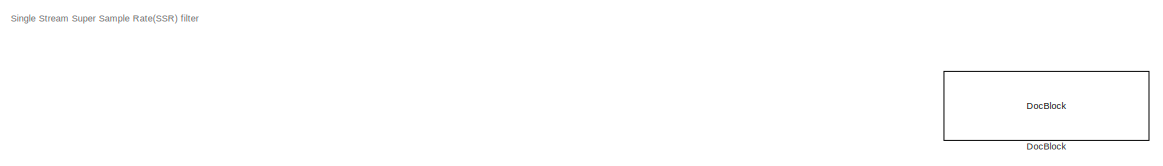
[diagram: root canvas - part 1/4, top center region]
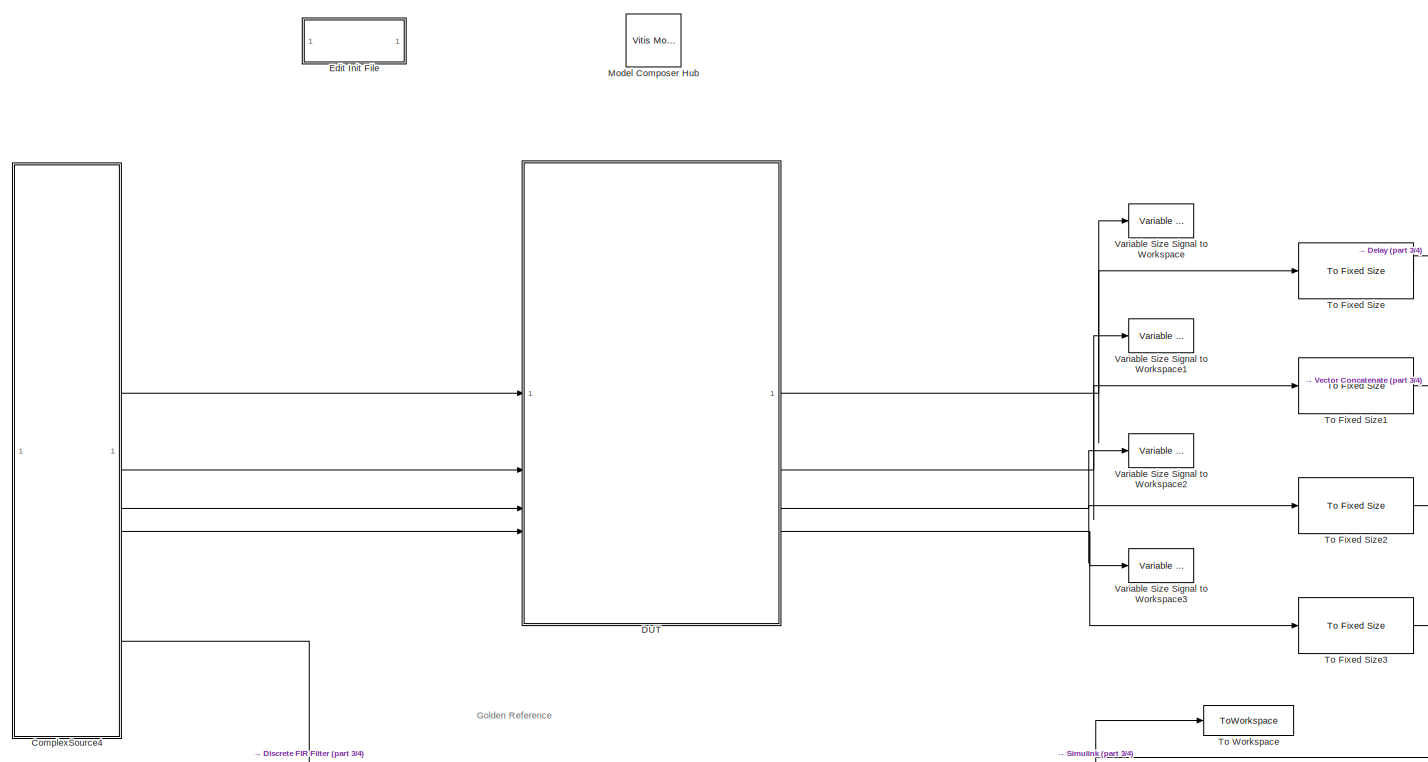
[diagram: root canvas - part 2/4, left side, full height]
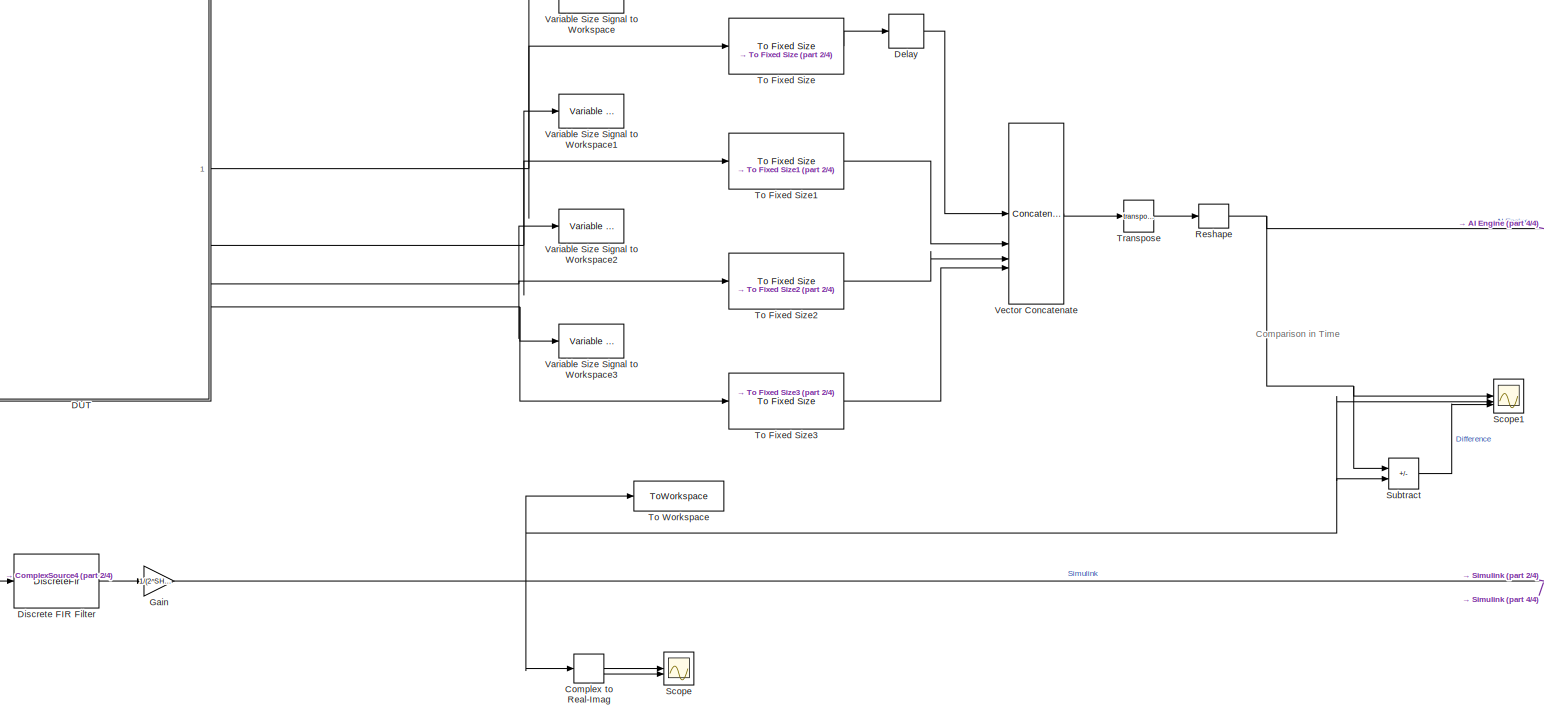
[diagram: root canvas - part 3/4, central region]
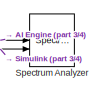
[diagram: root canvas - part 4/4, middle right region]
MODEL slx_2e8bdd02fb03
KIND model
CONFIG AbsTol = auto
CONFIG EnableMultiTasking = off
CONFIG FixedStep = auto
CONFIG InitFcn = xmcCheckSlxPath(bdroot)\nSSR4_init;\n\n
CONFIG MaxStep = auto
CONFIG MinStep = auto
CONFIG PreLoadFcn = xmcCheckSlxPath(bdroot)\nSSR4_init\n
CONFIG RelTol = 1e-3
CONFIG SampleTimeConstraint = Unconstrained
CONFIG SolverName = VariableStepAuto
CONFIG StartTime = 0.0
CONFIG StopTime = 4096
BLOCK [ComplexToRealImag] Complex to Real-Imag
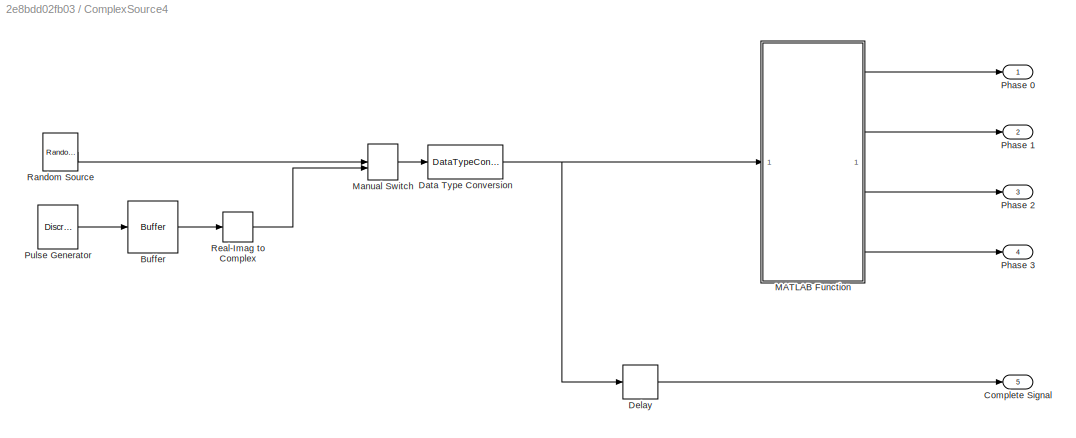
BLOCK [SubSystem] ComplexSource4
BLOCK [Buffer] ComplexSource4/Buffer
  N = N*4
  OutputFrames = off
BLOCK [Outport] ComplexSource4/Complete Signal
  Port = 5
BLOCK [DataTypeConversion] ComplexSource4/Data Type Conversion
  OutDataTypeStr = int16
  RndMeth = Floor
  SaturateOnIntegerOverflow = off
BLOCK [Delay] ComplexSource4/Delay
  DelayLength = N*4-3
  InputPortMap = u0
  InputProcessing = Columns as channels (frame based)
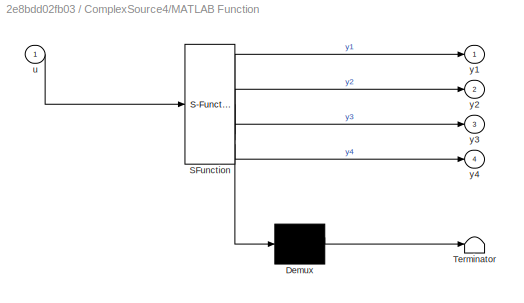
BLOCK [SubSystem] ComplexSource4/MATLAB Function
  ErrorFcn = Stateflow.Translate.translate
  PermitHierarchicalResolution = ExplicitOnly
  SFBlockType = MATLAB Function
  TreatAsAtomicUnit = on
BLOCK [Demux] ComplexSource4/MATLAB Function/ Demux 
  Outputs = 1
BLOCK [S-Function] ComplexSource4/MATLAB Function/ SFunction 
  EnableBusSupport = on
  FunctionName = sf_sfun
  PortCounts = [1 5]
  SFcnIsStateOwnerBlock = off
  SFunctionDeploymentMode = off
  Tag = Stateflow S-Function 2
BLOCK [Terminator] ComplexSource4/MATLAB Function/ Terminator 
BLOCK [Inport] ComplexSource4/MATLAB Function/u
BLOCK [Outport] ComplexSource4/MATLAB Function/y1
BLOCK [Outport] ComplexSource4/MATLAB Function/y2
  Port = 2
BLOCK [Outport] ComplexSource4/MATLAB Function/y3
  Port = 3
BLOCK [Outport] ComplexSource4/MATLAB Function/y4
  Port = 4
BLOCK [ManualSwitch] ComplexSource4/Manual Switch
BLOCK [Outport] ComplexSource4/Phase 0
BLOCK [Outport] ComplexSource4/Phase 1
  Port = 2
BLOCK [Outport] ComplexSource4/Phase 2
  Port = 3
BLOCK [Outport] ComplexSource4/Phase 3
  Port = 4
BLOCK [DiscretePulseGenerator] ComplexSource4/Pulse Generator
  Amplitude = 20000
  Period = 32 + 40*5
  PhaseDelay = 32
  SampleTime = 1/8
BLOCK [Reference] ComplexSource4/Random Source  REF=dspobslib/Random
Source
  SourceBlock = dspobslib/Random\nSource
  SourceType = Random Source Obsolete
  UserDataPersistent = on
BLOCK [RealImagToComplex] ComplexSource4/Real-Imag to Complex
  Input = Real
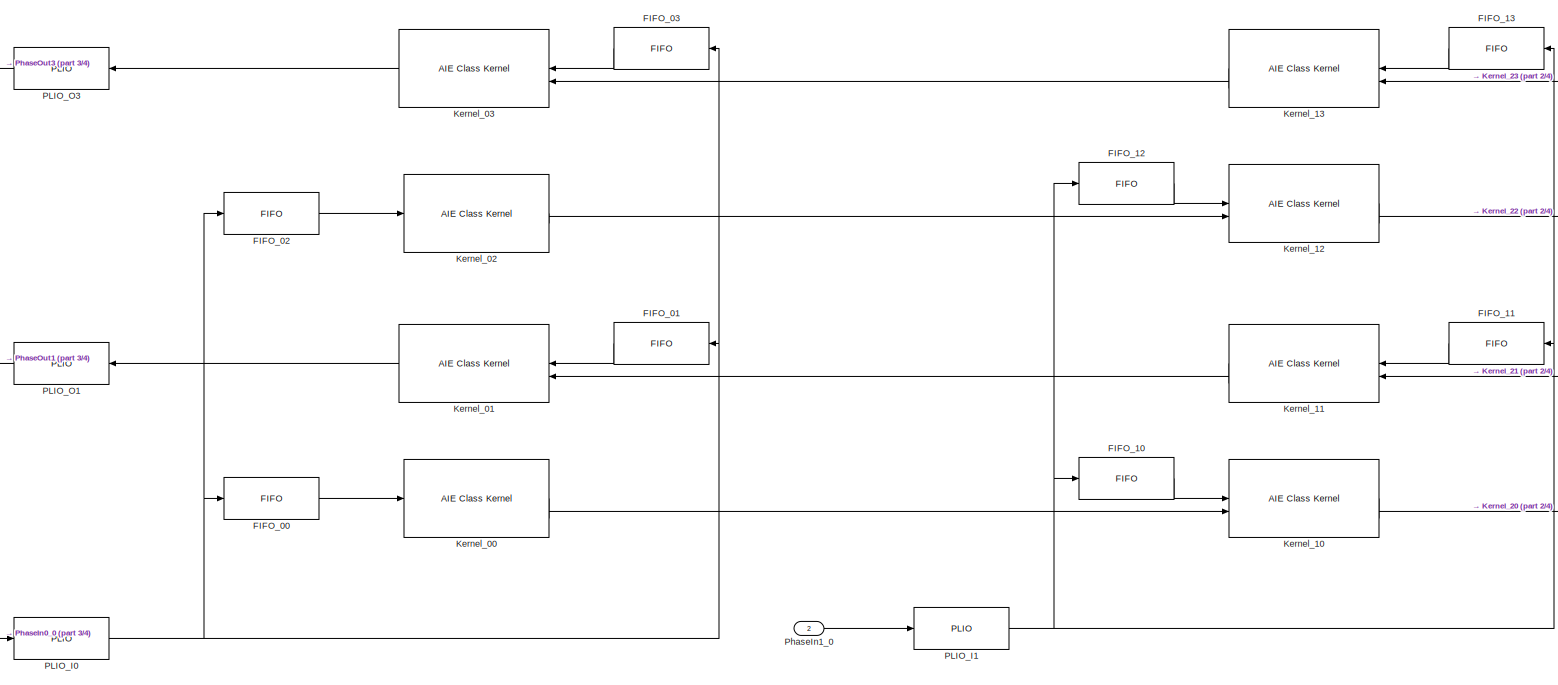
[diagram: DUT - part 1/4, left side, full height]
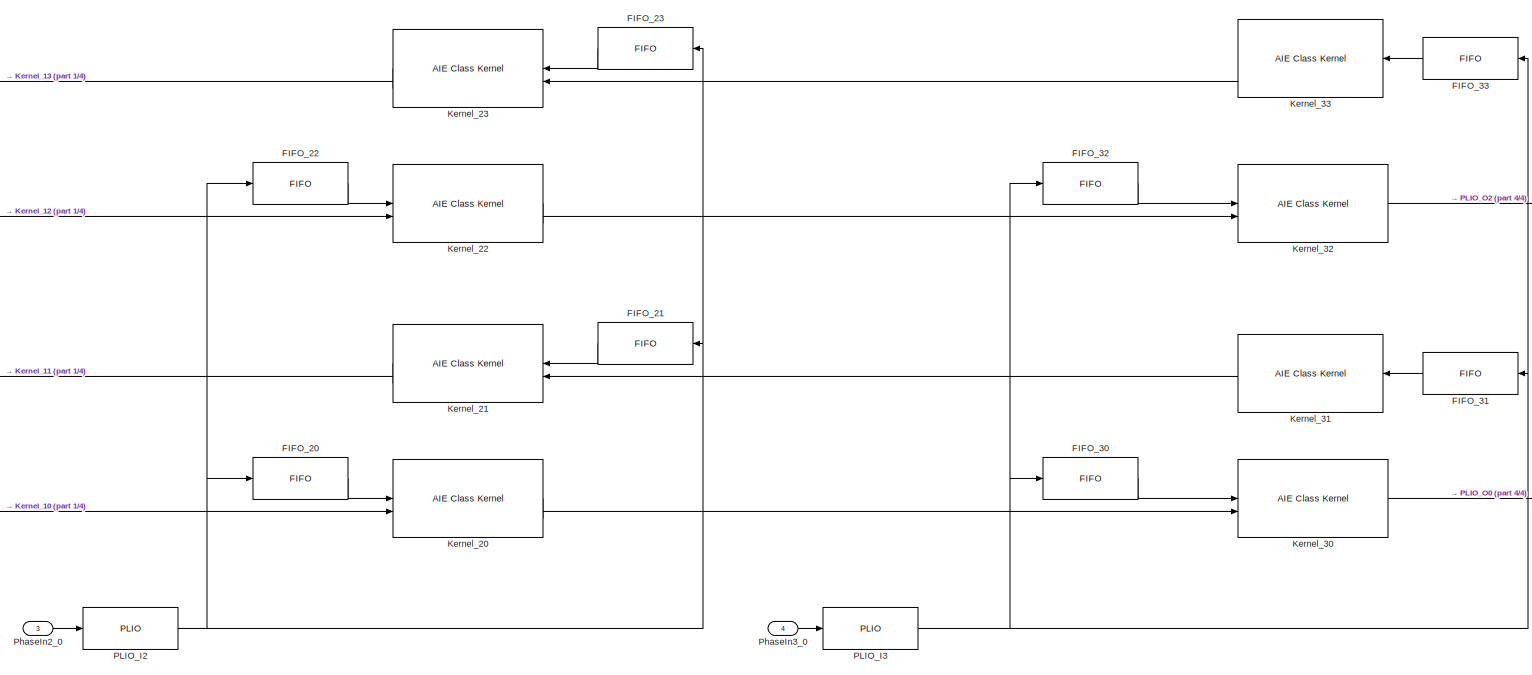
[diagram: DUT - part 2/4, right side, full height]
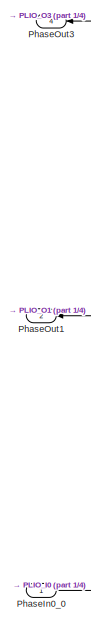
[diagram: DUT - part 3/4, left side, full height]
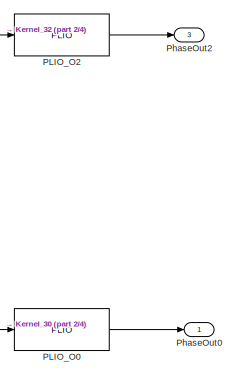
[diagram: DUT - part 4/4, middle right region]
BLOCK [SubSystem] DUT
BLOCK [Reference] DUT/FIFO_00  REF=aieBasic/FIFO
  SourceBlock = aieBasic/FIFO
  SourceType = FIFO
BLOCK [Reference] DUT/FIFO_01  REF=aieBasic/FIFO
  SourceBlock = aieBasic/FIFO
  SourceType = FIFO
BLOCK [Reference] DUT/FIFO_02  REF=aieBasic/FIFO
  SourceBlock = aieBasic/FIFO
  SourceType = FIFO
BLOCK [Reference] DUT/FIFO_03  REF=aieBasic/FIFO
  SourceBlock = aieBasic/FIFO
  SourceType = FIFO
BLOCK [Reference] DUT/FIFO_10  REF=aieBasic/FIFO
  SourceBlock = aieBasic/FIFO
  SourceType = FIFO
BLOCK [Reference] DUT/FIFO_11  REF=aieBasic/FIFO
  SourceBlock = aieBasic/FIFO
  SourceType = FIFO
BLOCK [Reference] DUT/FIFO_12  REF=aieBasic/FIFO
  SourceBlock = aieBasic/FIFO
  SourceType = FIFO
BLOCK [Reference] DUT/FIFO_13  REF=aieBasic/FIFO
  SourceBlock = aieBasic/FIFO
  SourceType = FIFO
BLOCK [Reference] DUT/FIFO_20  REF=aieBasic/FIFO
  SourceBlock = aieBasic/FIFO
  SourceType = FIFO
BLOCK [Reference] DUT/FIFO_21  REF=aieBasic/FIFO
  SourceBlock = aieBasic/FIFO
  SourceType = FIFO
BLOCK [Reference] DUT/FIFO_22  REF=aieBasic/FIFO
  SourceBlock = aieBasic/FIFO
  SourceType = FIFO
BLOCK [Reference] DUT/FIFO_23  REF=aieBasic/FIFO
  SourceBlock = aieBasic/FIFO
  SourceType = FIFO
BLOCK [Reference] DUT/FIFO_30  REF=aieBasic/FIFO
  SourceBlock = aieBasic/FIFO
  SourceType = FIFO
BLOCK [Reference] DUT/FIFO_31  REF=aieBasic/FIFO
  SourceBlock = aieBasic/FIFO
  SourceType = FIFO
BLOCK [Reference] DUT/FIFO_32  REF=aieBasic/FIFO
  SourceBlock = aieBasic/FIFO
  SourceType = FIFO
BLOCK [Reference] DUT/FIFO_33  REF=aieBasic/FIFO
  SourceBlock = aieBasic/FIFO
  SourceType = FIFO
BLOCK [Reference] DUT/Kernel_00  REF=aieBasic/AIE Class Kernel
  SourceBlock = aieBasic/AIE Class Kernel
  SourceType = AIE Class Kernel Function
BLOCK [Reference] DUT/Kernel_01  REF=aieBasic/AIE Class Kernel
  NameLocation = top
  SourceBlock = aieBasic/AIE Class Kernel
  SourceType = AIE Class Kernel Function
BLOCK [Reference] DUT/Kernel_02  REF=aieBasic/AIE Class Kernel
  SourceBlock = aieBasic/AIE Class Kernel
  SourceType = AIE Class Kernel Function
BLOCK [Reference] DUT/Kernel_03  REF=aieBasic/AIE Class Kernel
  NameLocation = top
  SourceBlock = aieBasic/AIE Class Kernel
  SourceType = AIE Class Kernel Function
BLOCK [Reference] DUT/Kernel_10  REF=aieBasic/AIE Class Kernel
  SourceBlock = aieBasic/AIE Class Kernel
  SourceType = AIE Class Kernel Function
BLOCK [Reference] DUT/Kernel_11  REF=aieBasic/AIE Class Kernel
  NameLocation = top
  SourceBlock = aieBasic/AIE Class Kernel
  SourceType = AIE Class Kernel Function
BLOCK [Reference] DUT/Kernel_12  REF=aieBasic/AIE Class Kernel
  SourceBlock = aieBasic/AIE Class Kernel
  SourceType = AIE Class Kernel Function
BLOCK [Reference] DUT/Kernel_13  REF=aieBasic/AIE Class Kernel
  NameLocation = top
  SourceBlock = aieBasic/AIE Class Kernel
  SourceType = AIE Class Kernel Function
BLOCK [Reference] DUT/Kernel_20  REF=aieBasic/AIE Class Kernel
  SourceBlock = aieBasic/AIE Class Kernel
  SourceType = AIE Class Kernel Function
BLOCK [Reference] DUT/Kernel_21  REF=aieBasic/AIE Class Kernel
  NameLocation = top
  SourceBlock = aieBasic/AIE Class Kernel
  SourceType = AIE Class Kernel Function
BLOCK [Reference] DUT/Kernel_22  REF=aieBasic/AIE Class Kernel
  SourceBlock = aieBasic/AIE Class Kernel
  SourceType = AIE Class Kernel Function
BLOCK [Reference] DUT/Kernel_23  REF=aieBasic/AIE Class Kernel
  NameLocation = top
  SourceBlock = aieBasic/AIE Class Kernel
  SourceType = AIE Class Kernel Function
BLOCK [Reference] DUT/Kernel_30  REF=aieBasic/AIE Class Kernel
  SourceBlock = aieBasic/AIE Class Kernel
  SourceType = AIE Class Kernel Function
BLOCK [Reference] DUT/Kernel_31  REF=aieBasic/AIE Class Kernel
  NameLocation = top
  SourceBlock = aieBasic/AIE Class Kernel
  SourceType = AIE Class Kernel Function
BLOCK [Reference] DUT/Kernel_32  REF=aieBasic/AIE Class Kernel
  SourceBlock = aieBasic/AIE Class Kernel
  SourceType = AIE Class Kernel Function
BLOCK [Reference] DUT/Kernel_33  REF=aieBasic/AIE Class Kernel
  NameLocation = top
  SourceBlock = aieBasic/AIE Class Kernel
  SourceType = AIE Class Kernel Function
BLOCK [Reference] DUT/PLIO_I0  REF=aieBasic/PLIO
  SourceBlock = aieBasic/PLIO
  SourceType = PLIO
BLOCK [Reference] DUT/PLIO_I1  REF=aieBasic/PLIO
  SourceBlock = aieBasic/PLIO
  SourceType = PLIO
BLOCK [Reference] DUT/PLIO_I2  REF=aieBasic/PLIO
  SourceBlock = aieBasic/PLIO
  SourceType = PLIO
BLOCK [Reference] DUT/PLIO_I3  REF=aieBasic/PLIO
  SourceBlock = aieBasic/PLIO
  SourceType = PLIO
BLOCK [Reference] DUT/PLIO_O0  REF=aieBasic/PLIO
  SourceBlock = aieBasic/PLIO
  SourceType = PLIO
BLOCK [Reference] DUT/PLIO_O1  REF=aieBasic/PLIO
  SourceBlock = aieBasic/PLIO
  SourceType = PLIO
BLOCK [Reference] DUT/PLIO_O2  REF=aieBasic/PLIO
  SourceBlock = aieBasic/PLIO
  SourceType = PLIO
BLOCK [Reference] DUT/PLIO_O3  REF=aieBasic/PLIO
  SourceBlock = aieBasic/PLIO
  SourceType = PLIO
BLOCK [Inport] DUT/PhaseIn0_0
BLOCK [Inport] DUT/PhaseIn1_0
  Port = 2
BLOCK [Inport] DUT/PhaseIn2_0
  Port = 3
BLOCK [Inport] DUT/PhaseIn3_0
  Port = 4
BLOCK [Outport] DUT/PhaseOut0
BLOCK [Outport] DUT/PhaseOut1
  NameLocation = top
  Port = 2
BLOCK [Outport] DUT/PhaseOut2
  Port = 3
BLOCK [Outport] DUT/PhaseOut3
  NameLocation = top
  Port = 4
BLOCK [Delay] Delay
  DelayLength = N
  InputPortMap = u0
  InputProcessing = Columns as channels (frame based)
BLOCK [DiscreteFir] Discrete FIR Filter
  Coefficients = Taps
  InputPortMap = u0
  InputProcessing = Columns as channels (frame based)
  OutputPortMap = o0
BLOCK [Reference] DocBlock  REF=simulink/Model-Wide
Utilities/DocBlock
  SourceBlock = simulink/Model-Wide\nUtilities/DocBlock
  SourceType = DocBlock
  UserDataPersistent = on
BLOCK [SubSystem] Edit Init File
  OpenFcn = edit('SSR4_init.m');
BLOCK [Gain] Gain
  Gain = 1/(2^SHIFT_ACC)
BLOCK [Reference] Model Composer Hub  REF=vmcUtilities/Vitis Model Composer Hub
  SourceBlock = vmcUtilities/Vitis Model Composer Hub
  SourceType = VMC Hub
  Tag = genX
  UserDataPersistent = on
BLOCK [Reshape] Reshape
BLOCK [Scope] Scope
  Floating = off
  NumInputPorts = 2
  ScopeSpecificationString = Simulink.scopes.TimeScopeBlockCfg('CurrentConfiguration', extmgr.ConfigurationSet(extmgr.Configuration('Core','General UI',true,'DisplayFullSourceName',false,'ShowMainToolbar',true),extmgr.Configuration('Sources','WiredSimulink',true,'DataLogging',false,'DataLoggingVariableName','ScopeData1','DataLoggingLimitDataPoints',false,'DataLoggingMaxPoints','5000','DataLoggingDecimateData',false,'DataLoggi...<+2797ch>
BLOCK [Scope] Scope1
  Floating = off
  NumInputPorts = 3
  ScopeSpecificationString = Simulink.scopes.TimeScopeBlockCfg('CurrentConfiguration', extmgr.ConfigurationSet(extmgr.Configuration('Core','General UI',true,'FigureColor',[0.129411764705882 0.129411764705882 0.129411764705882]),extmgr.Configuration('Core','Source UI',true),extmgr.Configuration('Sources','WiredSimulink',true,'DataLoggingVariableName','ScopeData2'),extmgr.Configuration('Visuals','Time Domain',true,'InputProcess...<+4137ch>
BLOCK [SpectrumAnalyzer] Spectrum Analyzer
  AllowFFTLengthLessThanSamplesPerUpdate = on
  AveragingMethod = Exponential
  ChannelNames = [""]
  DefaultConfigurationName = spbscopes.SpectrumAnalyzerBlockCfg
  GraphicalSettings = {"GraphicalSettings":{"Style":{"BackgroundColor":[0.12941176470588237,0.12941176470588237,0.12941176470588237],"AxesColor":[0,0,0],"LabelsColor":[0.6862745098039216,0.6862745098039216,0.6862745098039216],"PreserveColors":false,"Visible":[true,true],"LineStyle":["-","-"],"LineColor":[[1,1,0.06666666666666667],[0.07450980392156863,0.6235294117647059,1]],"LineWidth":[1,1],"Marker":["none","none"],"Fo...<+934ch>
  Method = Welch
  NumInputPorts = 2
  SampleRate = 8
  ScopeFrameLocation = window
  ScopeSpecificationString = spbscopes.SpectrumAnalyzerBlockCfg('CurrentConfiguration', extmgr.ConfigurationSet(extmgr.Configuration('Core','General UI',true,'FigureColor',[0.16        0.16        0.16]),extmgr.Configuration('Visuals','Spectrum',true,'Title','','YLabel','','MinYLim','-26.9916','MaxYLim','106.0233','Legend',true,'AxesProperties',struct('XGrid',{'on','on'},'YGrid',{'on','on'},'ZGrid',{'on','on'},'Color',{[0 0 0...<+2362ch>
  ShowLegend = on
  Span = 8
  StartFrequency = -4
  StopFrequency = 4
  WasSavedAsWebScope = on
  WindowPosition = [485.000000,50.000000,972.000000,557.000000,]
  YLimits = [-1.2338 96.9991]
BLOCK [Sum] Subtract
  IconShape = rectangular
  Inputs = +-
BLOCK [Reference] To Fixed Size  REF=aieUtilities/To Fixed Size
  SourceBlock = aieUtilities/To Fixed Size
  SourceType = To Fixed Size
BLOCK [Reference] To Fixed Size1  REF=aieUtilities/To Fixed Size
  SourceBlock = aieUtilities/To Fixed Size
  SourceType = To Fixed Size
BLOCK [Reference] To Fixed Size2  REF=aieUtilities/To Fixed Size
  SourceBlock = aieUtilities/To Fixed Size
  SourceType = To Fixed Size
BLOCK [Reference] To Fixed Size3  REF=aieUtilities/To Fixed Size
  SourceBlock = aieUtilities/To Fixed Size
  SourceType = To Fixed Size
BLOCK [ToWorkspace] To Workspace
  FixptAsFi = on
  MaxDataPoints = inf
  SampleTime = -1
  Save2DSignal = 2-D array (concatenate along first dimension)
  VariableName = Ref
BLOCK [Math] Transpose
  Operator = transpose
BLOCK [Reference] Variable Size Signal to Workspace  REF=aieUtilities/Variable Size Signal to Workspace
  SourceBlock = aieUtilities/Variable Size Signal to Workspace
  SourceType = Variable Size Signal to Workspace
BLOCK [Reference] Variable Size Signal to Workspace1  REF=aieUtilities/Variable Size Signal to Workspace
  SourceBlock = aieUtilities/Variable Size Signal to Workspace
  SourceType = Variable Size Signal to Workspace
BLOCK [Reference] Variable Size Signal to Workspace2  REF=aieUtilities/Variable Size Signal to Workspace
  SourceBlock = aieUtilities/Variable Size Signal to Workspace
  SourceType = Variable Size Signal to Workspace
BLOCK [Reference] Variable Size Signal to Workspace3  REF=aieUtilities/Variable Size Signal to Workspace
  SourceBlock = aieUtilities/Variable Size Signal to Workspace
  SourceType = Variable Size Signal to Workspace
BLOCK [Concatenate] Vector Concatenate
  ConcatenateDimension = 2
  Mode = Multidimensional array
  NumInputs = 4
ANNOTATION (root): Single Stream Super Sample Rate(SSR) filter
ANNOTATION (root): Comparison in Time
ANNOTATION (root): Golden Reference
LINE Complex to Real-Imag:1 -> Scope:1
LINE Complex to Real-Imag:2 -> Scope:2
LINE ComplexSource4/Buffer:1 -> ComplexSource4/Real-Imag to Complex:1
NET ComplexSource4/Data Type Conversion:1 -> ComplexSource4/Delay:1, ComplexSource4/MATLAB Function:1
LINE ComplexSource4/Delay:1 -> ComplexSource4/Complete Signal:1
LINE ComplexSource4/MATLAB Function:1 -> ComplexSource4/Phase 0:1
LINE ComplexSource4/MATLAB Function:2 -> ComplexSource4/Phase 1:1
LINE ComplexSource4/MATLAB Function:3 -> ComplexSource4/Phase 2:1
LINE ComplexSource4/MATLAB Function:4 -> ComplexSource4/Phase 3:1
LINE ComplexSource4/Manual Switch:1 -> ComplexSource4/Data Type Conversion:1
LINE ComplexSource4/Pulse Generator:1 -> ComplexSource4/Buffer:1
LINE ComplexSource4/Random Source:1 -> ComplexSource4/Manual Switch:1
LINE ComplexSource4/Real-Imag to Complex:1 -> ComplexSource4/Manual Switch:2
LINE ComplexSource4:1 -> DUT:1
LINE ComplexSource4:2 -> DUT:2
LINE ComplexSource4:3 -> DUT:3
LINE ComplexSource4:4 -> DUT:4
LINE ComplexSource4:5 -> Discrete FIR Filter:1
LINE DUT/FIFO_00:1 -> DUT/Kernel_00:1
LINE DUT/FIFO_01:1 -> DUT/Kernel_01:1
LINE DUT/FIFO_02:1 -> DUT/Kernel_02:1
LINE DUT/FIFO_03:1 -> DUT/Kernel_03:1
LINE DUT/FIFO_10:1 -> DUT/Kernel_10:1
LINE DUT/FIFO_11:1 -> DUT/Kernel_11:1
LINE DUT/FIFO_12:1 -> DUT/Kernel_12:1
LINE DUT/FIFO_13:1 -> DUT/Kernel_13:1
LINE DUT/FIFO_20:1 -> DUT/Kernel_20:1
LINE DUT/FIFO_21:1 -> DUT/Kernel_21:1
LINE DUT/FIFO_22:1 -> DUT/Kernel_22:1
LINE DUT/FIFO_23:1 -> DUT/Kernel_23:1
LINE DUT/FIFO_30:1 -> DUT/Kernel_30:1
LINE DUT/FIFO_31:1 -> DUT/Kernel_31:1
LINE DUT/FIFO_32:1 -> DUT/Kernel_32:1
LINE DUT/FIFO_33:1 -> DUT/Kernel_33:1
LINE DUT/Kernel_00:1 -> DUT/Kernel_10:2
LINE DUT/Kernel_01:1 -> DUT/PLIO_O1:1
LINE DUT/Kernel_02:1 -> DUT/Kernel_12:2
LINE DUT/Kernel_03:1 -> DUT/PLIO_O3:1
LINE DUT/Kernel_10:1 -> DUT/Kernel_20:2
LINE DUT/Kernel_11:1 -> DUT/Kernel_01:2
LINE DUT/Kernel_12:1 -> DUT/Kernel_22:2
LINE DUT/Kernel_13:1 -> DUT/Kernel_03:2
LINE DUT/Kernel_20:1 -> DUT/Kernel_30:2
LINE DUT/Kernel_21:1 -> DUT/Kernel_11:2
LINE DUT/Kernel_22:1 -> DUT/Kernel_32:2
LINE DUT/Kernel_23:1 -> DUT/Kernel_13:2
LINE DUT/Kernel_30:1 -> DUT/PLIO_O0:1
LINE DUT/Kernel_31:1 -> DUT/Kernel_21:2
LINE DUT/Kernel_32:1 -> DUT/PLIO_O2:1
LINE DUT/Kernel_33:1 -> DUT/Kernel_23:2
NET DUT/PLIO_I0:1 -> DUT/FIFO_00:1, DUT/FIFO_01:1, DUT/FIFO_02:1, DUT/FIFO_03:1
NET DUT/PLIO_I1:1 -> DUT/FIFO_10:1, DUT/FIFO_11:1, DUT/FIFO_12:1, DUT/FIFO_13:1
NET DUT/PLIO_I2:1 -> DUT/FIFO_20:1, DUT/FIFO_21:1, DUT/FIFO_22:1, DUT/FIFO_23:1
NET DUT/PLIO_I3:1 -> DUT/FIFO_30:1, DUT/FIFO_31:1, DUT/FIFO_32:1, DUT/FIFO_33:1
LINE DUT/PLIO_O0:1 -> DUT/PhaseOut0:1
LINE DUT/PLIO_O1:1 -> DUT/PhaseOut1:1
LINE DUT/PLIO_O2:1 -> DUT/PhaseOut2:1
LINE DUT/PLIO_O3:1 -> DUT/PhaseOut3:1
LINE DUT/PhaseIn0_0:1 -> DUT/PLIO_I0:1
LINE DUT/PhaseIn1_0:1 -> DUT/PLIO_I1:1
LINE DUT/PhaseIn2_0:1 -> DUT/PLIO_I2:1
LINE DUT/PhaseIn3_0:1 -> DUT/PLIO_I3:1
NET DUT:1 -> To Fixed Size:1, Variable Size Signal to Workspace:1
NET DUT:2 -> To Fixed Size1:1, Variable Size Signal to Workspace1:1
NET DUT:3 -> To Fixed Size2:1, Variable Size Signal to Workspace2:1
NET DUT:4 -> To Fixed Size3:1, Variable Size Signal to Workspace3:1
LINE Delay:1 -> Vector Concatenate:1
LINE Discrete FIR Filter:1 -> Gain:1
NET Gain:1 -> Complex to Real-Imag:1, Scope1:2, Spectrum Analyzer:2, Subtract:2, To Workspace:1
NET Reshape:1 -> Scope1:1, Spectrum Analyzer:1, Subtract:1
LINE Subtract:1 -> Scope1:3
LINE To Fixed Size1:1 -> Vector Concatenate:2
LINE To Fixed Size2:1 -> Vector Concatenate:3
LINE To Fixed Size3:1 -> Vector Concatenate:4
LINE To Fixed Size:1 -> Delay:1
LINE Transpose:1 -> Reshape:1
LINE Vector Concatenate:1 -> Transpose:1
note: NET lines group one-source signal fan-out (src -> all destinations, sorted); 1:1 wires keep LINE
CHART ComplexSource4/MATLAB Function states=1 transitions=1
  STATE_LABEL 'eML_blk_kernel()'
  STATE_LABEL 'SCRIPT:\nfunction [y1,y2,y3,y4] = fcn(u)\n\ny1 = u(1:4:end);\ny2 = u(2:4:end);\ny3 = u(3:4:end);\ny4 = u(4:4:end);\n'
CHART  states=0 transitions=0
